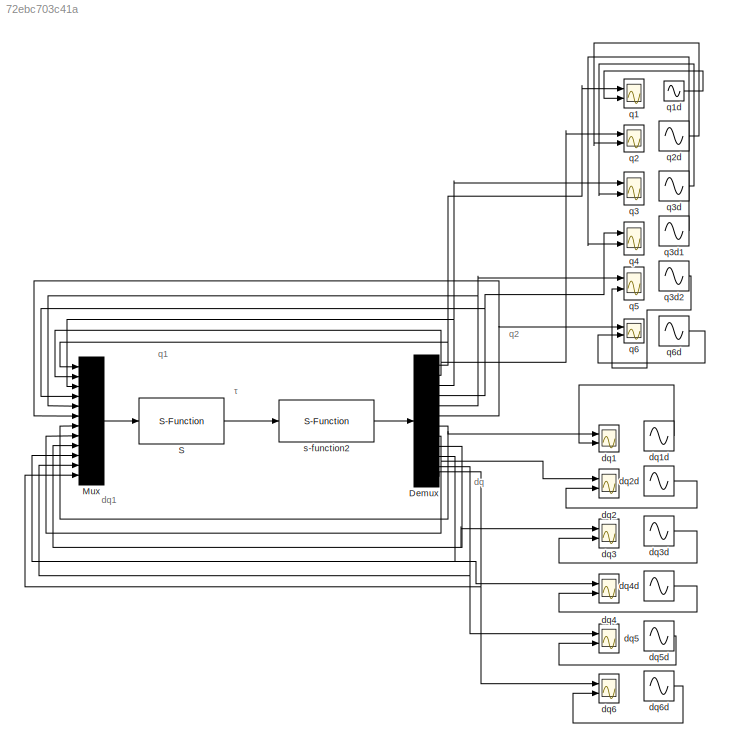
MODEL slx_72ebc703c41a
KIND model
CONFIG AbsTol = auto
CONFIG FixedStep = 0.3
CONFIG MaxStep = auto
CONFIG MinStep = auto
CONFIG RelTol = 1e-3
CONFIG SampleTimeConstraint = Unconstrained
CONFIG Solver = VariableStepAuto
CONFIG SolverMode = Auto
CONFIG SolverName = VariableStepAuto
CONFIG StartTime = 0.0
CONFIG StopTime = 10
BLOCK [Demux] Demux
  DisplayOption = bar
  Outputs = 12
  Ports = [1, 12]
BLOCK [Mux] Mux
  DisplayOption = bar
  Inputs = 12
  Ports = [12, 1]
BLOCK [S-Function] S 
  EnableBusSupport = off
  FunctionName = ctrl_puma_robot
  Ports = [1, 1]
  SFunctionDeploymentMode = off
BLOCK [Scope] dq1
  NumInputPorts = 2
  Ports = [2]
  ScopeSpecificationString = Simulink.scopes.TimeScopeBlockCfg('CurrentConfiguration', extmgr.ConfigurationSet(extmgr.Configuration('Core','General UI',true),extmgr.Configuration('Core','Source UI',true),extmgr.Configuration('Sources','WiredSimulink',true,'DataLoggingVariableName','ScopeData6'),extmgr.Configuration('Visuals','Time Domain',true,'SerializedDisplays',{struct('MinYLimReal','-4.07311','MaxYLimReal','3.94203','YLab...<+1398ch>
BLOCK [Sin] dq1d
  Amplitude = -pi
  Frequency = pi
  Ports = [0, 1]
  SampleTime = 0
BLOCK [Scope] dq2
  NumInputPorts = 2
  Ports = [2]
  ScopeSpecificationString = Simulink.scopes.TimeScopeBlockCfg('CurrentConfiguration', extmgr.ConfigurationSet(extmgr.Configuration('Core','General UI',true),extmgr.Configuration('Core','Source UI',true),extmgr.Configuration('Sources','WiredSimulink',true,'DataLoggingVariableName','ScopeData7','DataLoggingLimitDataPoints',true,'DataLoggingSaveFormat','Array','DataLoggingDecimation','1','DataLoggingDecimateData',true),extmgr.C...<+1498ch>
BLOCK [Sin] dq2d
  Amplitude = pi/2
  Frequency = pi/2
  Phase = pi/2
  Ports = [0, 1]
  SampleTime = 0
BLOCK [Scope] dq3
  NumInputPorts = 2
  Ports = [2]
  ScopeSpecificationString = Simulink.scopes.TimeScopeBlockCfg('CurrentConfiguration', extmgr.ConfigurationSet(extmgr.Configuration('Core','General UI',true),extmgr.Configuration('Core','Source UI',true),extmgr.Configuration('Sources','WiredSimulink',true,'DataLoggingVariableName','ScopeData8','DataLoggingLimitDataPoints',true,'DataLoggingSaveFormat','Array','DataLoggingDecimation','1','DataLoggingDecimateData',true),extmgr.C...<+1519ch>
BLOCK [Sin] dq3d
  Amplitude = pi
  Frequency = pi
  Phase = pi/2
  Ports = [0, 1]
  SampleTime = 0
BLOCK [Scope] dq4
  NumInputPorts = 2
  Ports = [2]
  ScopeSpecificationString = Simulink.scopes.TimeScopeBlockCfg('CurrentConfiguration', extmgr.ConfigurationSet(extmgr.Configuration('Core','General UI',true),extmgr.Configuration('Core','Source UI',true),extmgr.Configuration('Sources','WiredSimulink',true,'DataLoggingVariableName','ScopeData9'),extmgr.Configuration('Visuals','Time Domain',true,'SerializedDisplays',{struct('MinYLimReal','-3.93778','MaxYLimReal','4.02715','YLab...<+1428ch>
BLOCK [Sin] dq4d
  Amplitude = pi
  Frequency = pi
  Phase = pi/2
  Ports = [0, 1]
  SampleTime = 0
BLOCK [Scope] dq5
  NumInputPorts = 2
  Ports = [2]
  ScopeSpecificationString = Simulink.scopes.TimeScopeBlockCfg('CurrentConfiguration', extmgr.ConfigurationSet(extmgr.Configuration('Core','General UI',true),extmgr.Configuration('Core','Source UI',true),extmgr.Configuration('Sources','WiredSimulink',true,'DataLoggingVariableName','ScopeData10','DataLoggingLimitDataPoints',true,'DataLoggingSaveFormat','Array','DataLoggingDecimation','1','DataLoggingDecimateData',true),extmgr....<+1500ch>
BLOCK [Sin] dq5d
  Amplitude = -pi
  Frequency = pi
  Ports = [0, 1]
  SampleTime = 0
BLOCK [Scope] dq6
  NumInputPorts = 2
  Ports = [2]
  ScopeSpecificationString = Simulink.scopes.TimeScopeBlockCfg('CurrentConfiguration', extmgr.ConfigurationSet(extmgr.Configuration('Core','General UI',true),extmgr.Configuration('Core','Source UI',true),extmgr.Configuration('Sources','WiredSimulink',true,'DataLoggingVariableName','ScopeData11','DataLoggingLimitDataPoints',true,'DataLoggingSaveFormat','Array','DataLoggingDecimation','1','DataLoggingDecimateData',true),extmgr....<+1500ch>
BLOCK [Sin] dq6d
  Amplitude = -pi/2
  Frequency = pi/2
  Ports = [0, 1]
  SampleTime = 0
BLOCK [Scope] q1
  NumInputPorts = 2
  Ports = [2]
  ScopeSpecificationString = Simulink.scopes.TimeScopeBlockCfg('CurrentConfiguration', extmgr.ConfigurationSet(extmgr.Configuration('Core','General UI',true),extmgr.Configuration('Core','Source UI',true),extmgr.Configuration('Sources','WiredSimulink',true),extmgr.Configuration('Visuals','Time Domain',true,'SerializedDisplays',{struct('MinYLimReal','-1.26102','MaxYLimReal','1.35018','YLabelReal','','MinYLimMag','0.00000','MaxY...<+1387ch>
BLOCK [Sin] q1d
  Frequency = pi
  Phase = pi/2
  Ports = [0, 1]
  SampleTime = 0
BLOCK [Scope] q2
  NumInputPorts = 2
  Ports = [2]
  ScopeSpecificationString = Simulink.scopes.TimeScopeBlockCfg('CurrentConfiguration', extmgr.ConfigurationSet(extmgr.Configuration('Core','General UI',true),extmgr.Configuration('Core','Source UI',true),extmgr.Configuration('Sources','WiredSimulink',true,'DataLoggingVariableName','ScopeData1'),extmgr.Configuration('Visuals','Time Domain',true,'SerializedDisplays',{struct('MinYLimReal','-1.31003','MaxYLimReal','1.30236','YLab...<+1426ch>
BLOCK [Sin] q2d
  Frequency = pi/2
  Ports = [0, 1]
  SampleTime = 0
BLOCK [Scope] q3
  NumInputPorts = 2
  Ports = [2]
  ScopeSpecificationString = Simulink.scopes.TimeScopeBlockCfg('CurrentConfiguration', extmgr.ConfigurationSet(extmgr.Configuration('Core','General UI',true),extmgr.Configuration('Core','Source UI',true),extmgr.Configuration('Sources','WiredSimulink',true,'DataLoggingVariableName','ScopeData2','DataLoggingLimitDataPoints',true,'DataLoggingSaveFormat','Array','DataLoggingDecimation','1','DataLoggingDecimateData',true),extmgr.C...<+1526ch>
BLOCK [Sin] q3d
  Frequency = pi
  Ports = [0, 1]
  SampleTime = 0
BLOCK [Sin] q3d1
  Frequency = pi
  Ports = [0, 1]
  SampleTime = 0
BLOCK [Sin] q3d2
  Frequency = pi
  Phase = pi/2
  Ports = [0, 1]
  SampleTime = 0
BLOCK [Scope] q4
  NumInputPorts = 2
  Ports = [2]
  ScopeSpecificationString = Simulink.scopes.TimeScopeBlockCfg('CurrentConfiguration', extmgr.ConfigurationSet(extmgr.Configuration('Core','General UI',true),extmgr.Configuration('Core','Source UI',true),extmgr.Configuration('Sources','WiredSimulink',true,'DataLoggingVariableName','ScopeData3','DataLoggingLimitDataPoints',true,'DataLoggingSaveFormat','Array','DataLoggingDecimation','1','DataLoggingDecimateData',true),extmgr.C...<+1527ch>
BLOCK [Scope] q5
  NumInputPorts = 2
  Ports = [2]
  ScopeSpecificationString = Simulink.scopes.TimeScopeBlockCfg('CurrentConfiguration', extmgr.ConfigurationSet(extmgr.Configuration('Core','General UI',true),extmgr.Configuration('Core','Source UI',true),extmgr.Configuration('Sources','WiredSimulink',true,'DataLoggingVariableName','ScopeData4','DataLoggingLimitDataPoints',true,'DataLoggingSaveFormat','Array','DataLoggingDecimation','1','DataLoggingDecimateData',true),extmgr.C...<+1498ch>
BLOCK [Scope] q6
  NumInputPorts = 2
  Ports = [2]
  ScopeSpecificationString = Simulink.scopes.TimeScopeBlockCfg('CurrentConfiguration', extmgr.ConfigurationSet(extmgr.Configuration('Core','General UI',true),extmgr.Configuration('Core','Source UI',true),extmgr.Configuration('Sources','WiredSimulink',true,'DataLoggingVariableName','ScopeData5','DataLoggingLimitDataPoints',true,'DataLoggingSaveFormat','Array','DataLoggingDecimation','1','DataLoggingDecimateData',true),extmgr.C...<+1552ch>
BLOCK [Sin] q6d 
  Frequency = pi/2
  Phase = pi/2
  Ports = [0, 1]
  SampleTime = 0
BLOCK [S-Function] s-function2 
  EnableBusSupport = off
  FunctionName = plant_puma_robot
  Ports = [1, 1]
  SFunctionDeploymentMode = off
ANNOTATION (root): dq
ANNOTATION (root): q2
ANNOTATION (root): τ
ANNOTATION (root): dq1
ANNOTATION (root): q1
NET Demux:1 -> Mux:1, q1:1
NET Demux:10 -> Mux:10, dq4:1
NET Demux:11 -> Mux:11, dq5:1
NET Demux:12 -> Mux:12, dq6:1
NET Demux:2 -> Mux:2, q2:1
NET Demux:3 -> Mux:3, q3:1
NET Demux:4 -> Mux:4, q4:1
NET Demux:5 -> Mux:5, q5:1
NET Demux:6 -> Mux:6, q6:1
NET Demux:7 -> Mux:7, dq1:1
NET Demux:8 -> Mux:8, dq2:1
NET Demux:9 -> Mux:9, dq3:1
LINE Mux:1 -> S :1
LINE S :1 -> s-function2 :1
LINE dq1d:1 -> dq1:2
LINE dq2d:1 -> dq2:2
LINE dq3d:1 -> dq3:2
LINE dq4d:1 -> dq4:2
LINE dq5d:1 -> dq5:2
LINE dq6d:1 -> dq6:2
LINE q1d:1 -> q1:2
LINE q2d:1 -> q2:2
LINE q3d1:1 -> q4:2
LINE q3d2:1 -> q5:2
LINE q3d:1 -> q3:2
LINE q6d :1 -> q6:2
LINE s-function2 :1 -> Demux:1
note: NET lines group one-source signal fan-out (src -> all destinations, sorted); 1:1 wires keep LINE
